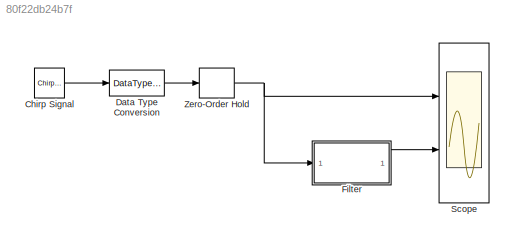
MODEL slx_80f22db24b7f
KIND model
CONFIG AbsTol = auto
CONFIG FixedStep = auto
CONFIG MaxStep = auto
CONFIG MinStep = auto
CONFIG RelTol = 1e-3
CONFIG SampleTimeConstraint = Unconstrained
CONFIG Solver = FixedStepDiscrete
CONFIG SolverMode = SingleTasking
CONFIG SolverName = FixedStepDiscrete
CONFIG StartTime = 0.0
CONFIG StopTime = 10000/1e6
BLOCK [Reference] Chirp Signal  REF=simulink/Sources/Chirp Signal
  Ports = [0, 1]
  SourceBlock = simulink/Sources/Chirp Signal
  SourceType = chirp
BLOCK [DataTypeConversion] Data Type Conversion
  OutDataTypeStr = fixdt(1,16,14)
  RndMeth = Nearest
  SaturateOnIntegerOverflow = off
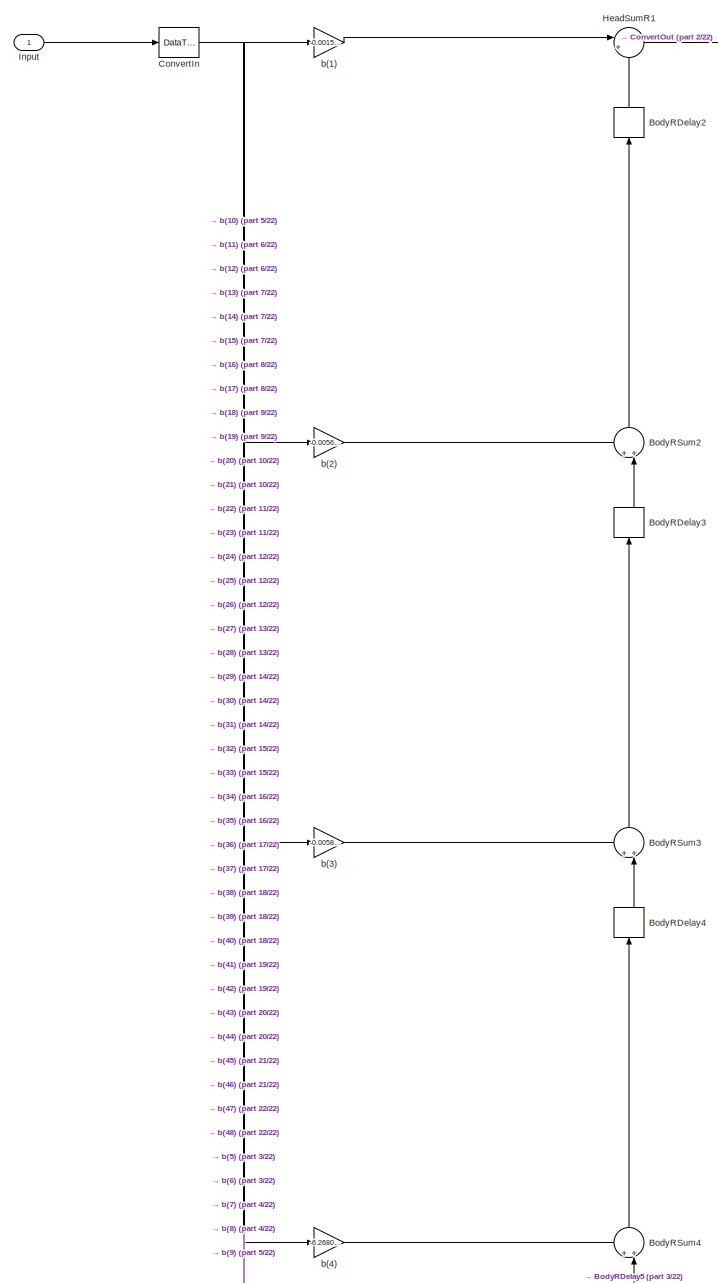
[diagram: Filter - part 1/22, full width, top band]
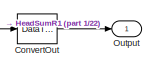
[diagram: Filter - part 2/22, top right region]
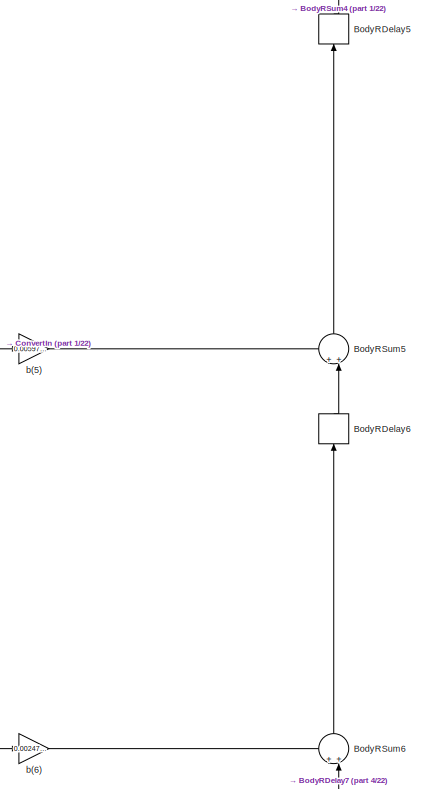
[diagram: Filter - part 3/22, top center region]
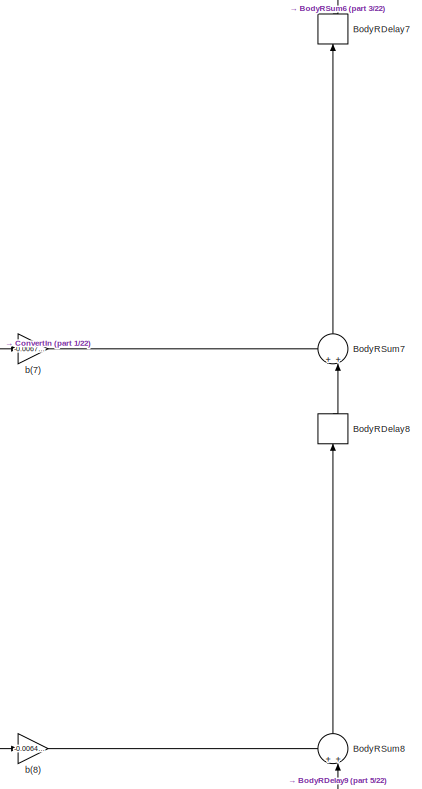
[diagram: Filter - part 4/22, top center region]
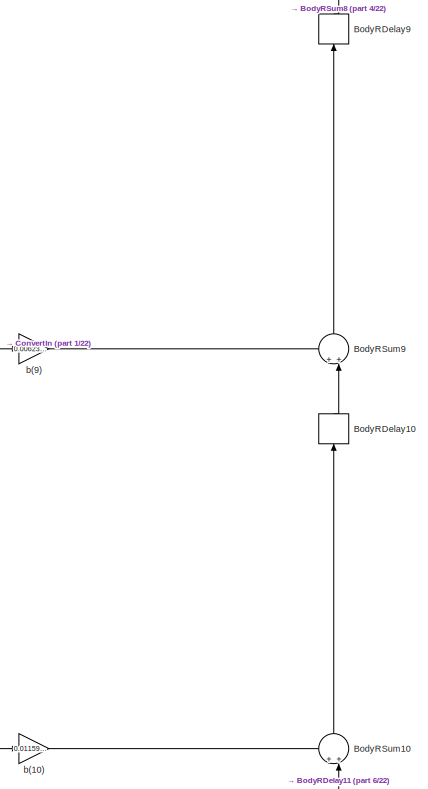
[diagram: Filter - part 5/22, top center region]
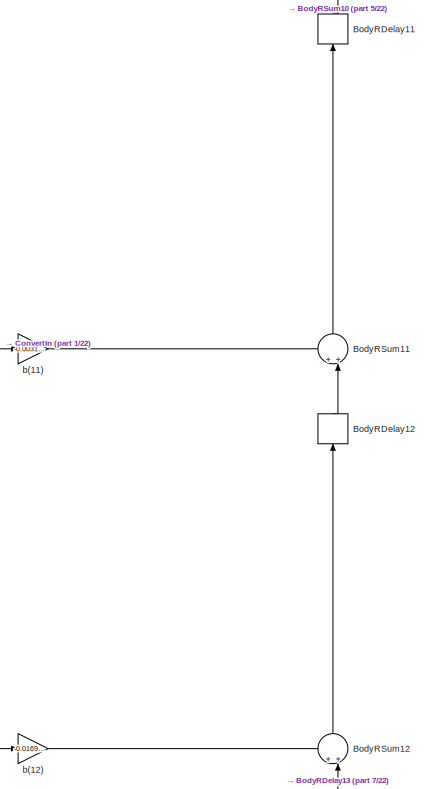
[diagram: Filter - part 6/22, top center region]
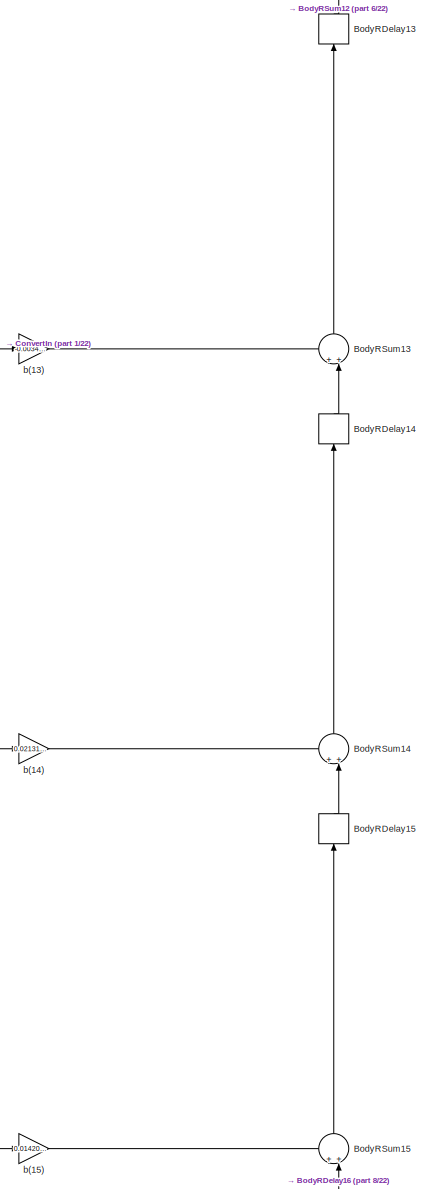
[diagram: Filter - part 7/22, top center region]
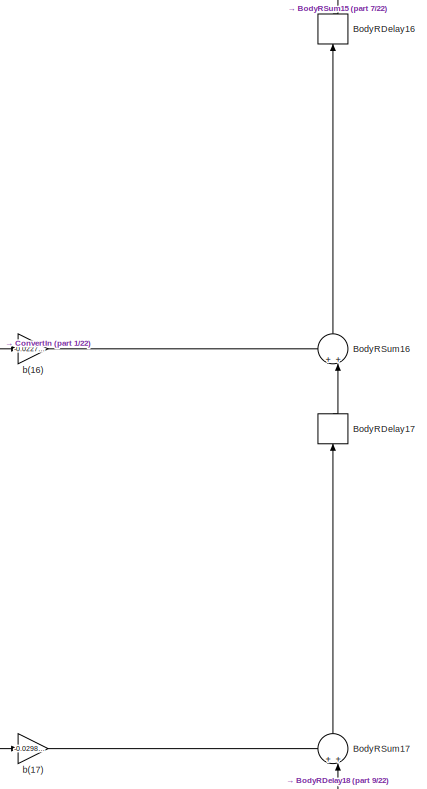
[diagram: Filter - part 8/22, top center region]
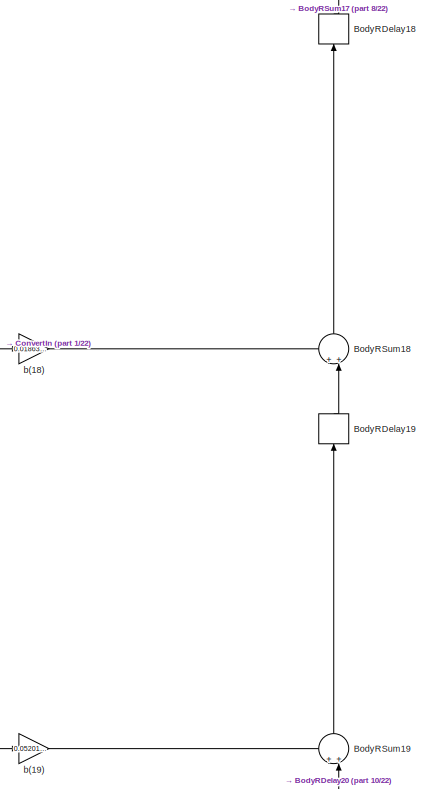
[diagram: Filter - part 9/22, central region]
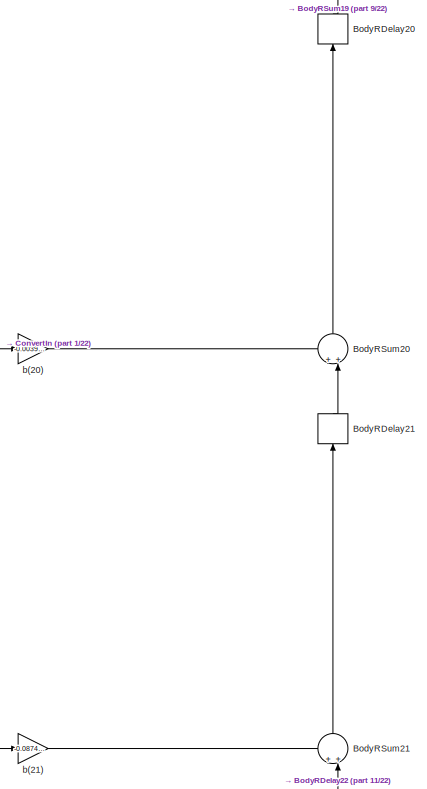
[diagram: Filter - part 10/22, central region]
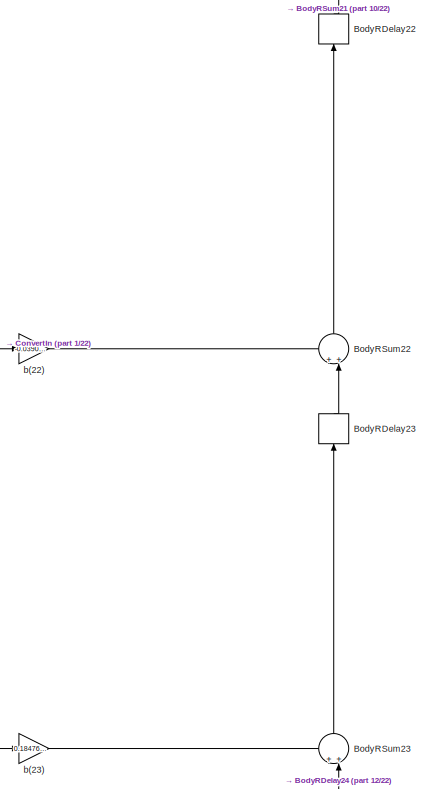
[diagram: Filter - part 11/22, central region]
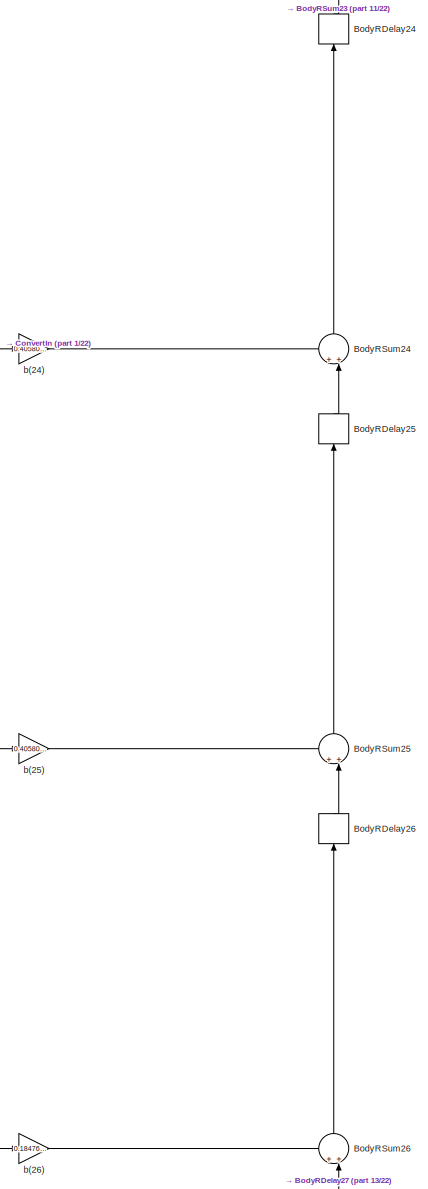
[diagram: Filter - part 12/22, central region]
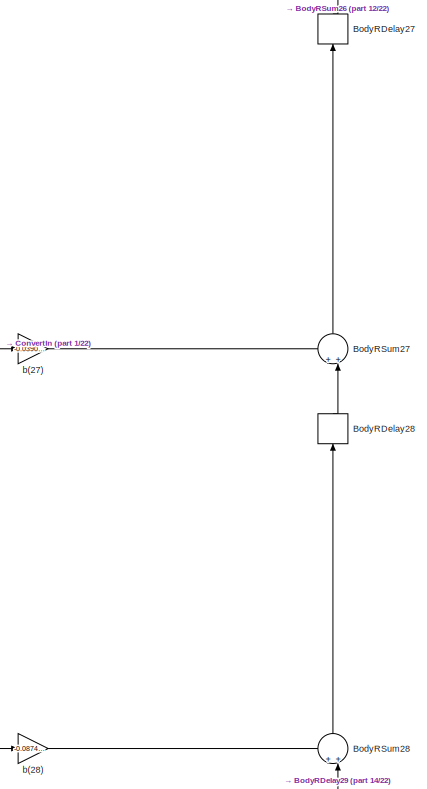
[diagram: Filter - part 13/22, central region]
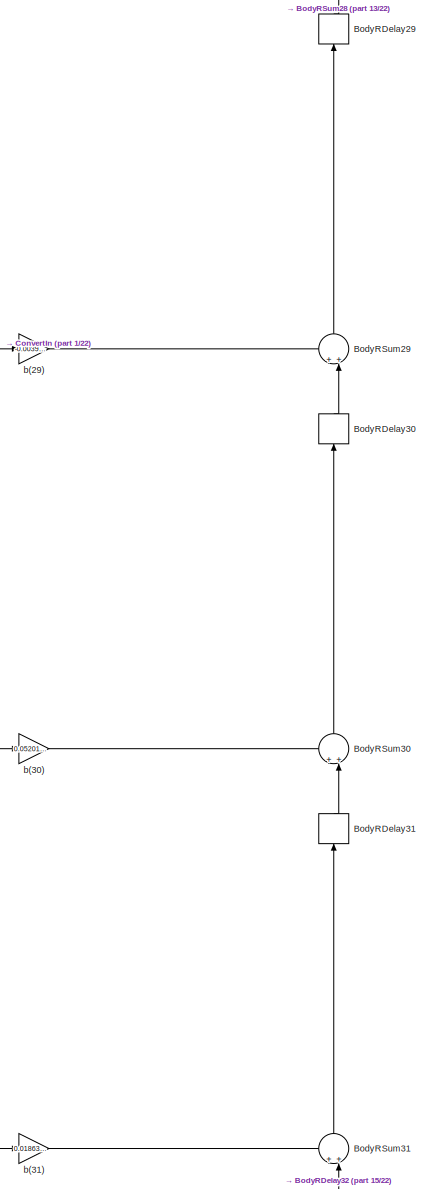
[diagram: Filter - part 14/22, central region]
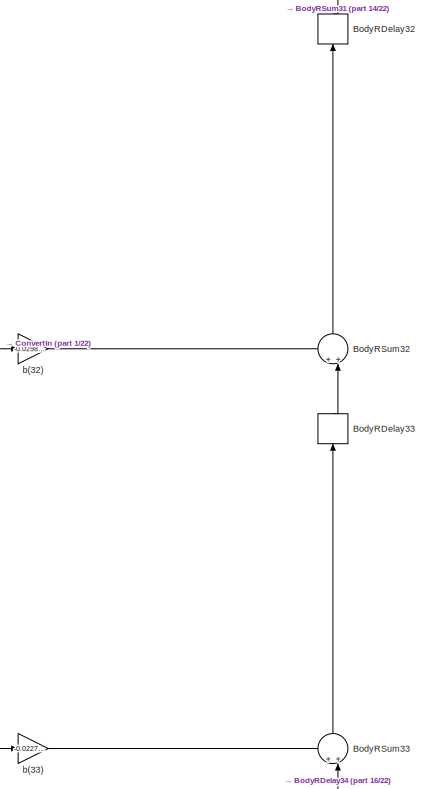
[diagram: Filter - part 15/22, central region]
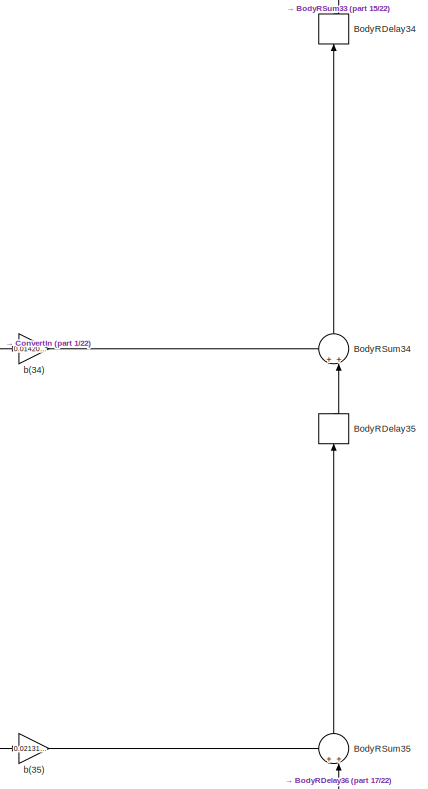
[diagram: Filter - part 16/22, bottom center region]
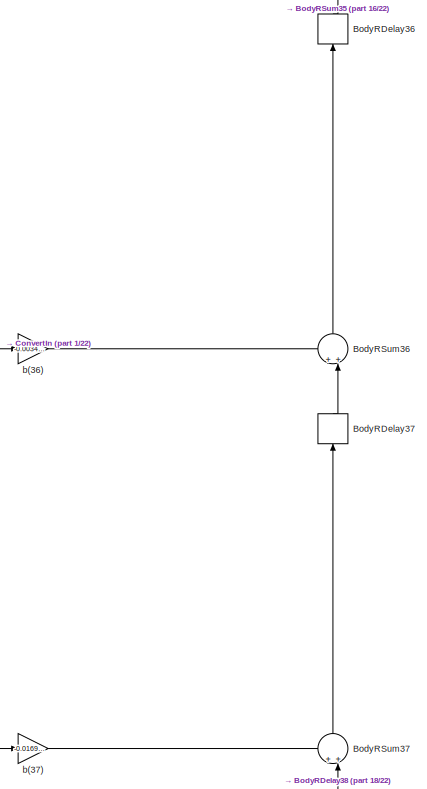
[diagram: Filter - part 17/22, bottom center region]
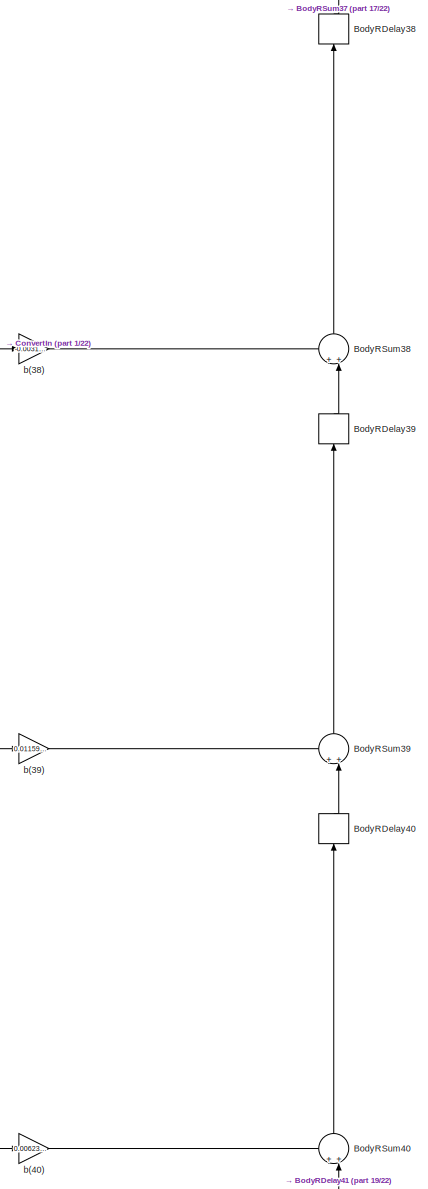
[diagram: Filter - part 18/22, bottom center region]
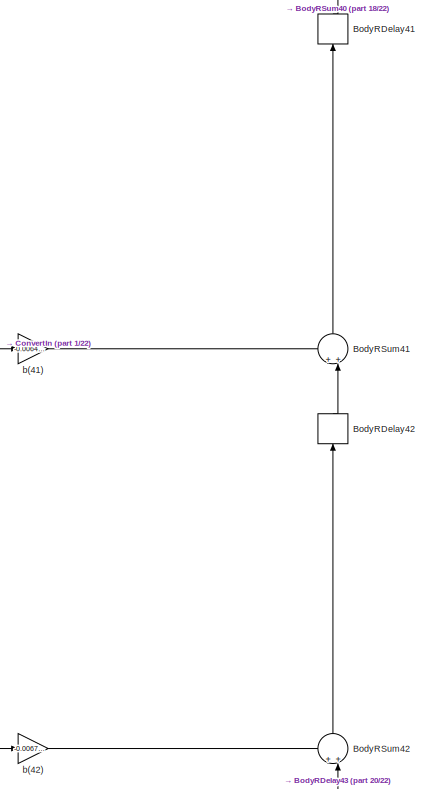
[diagram: Filter - part 19/22, bottom center region]
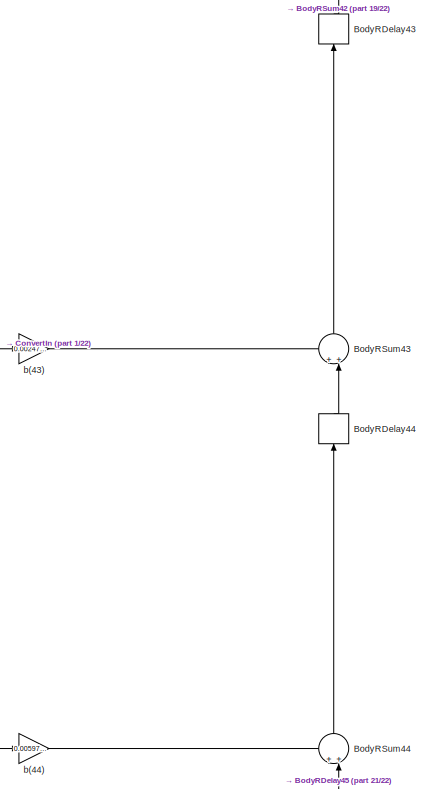
[diagram: Filter - part 20/22, bottom center region]
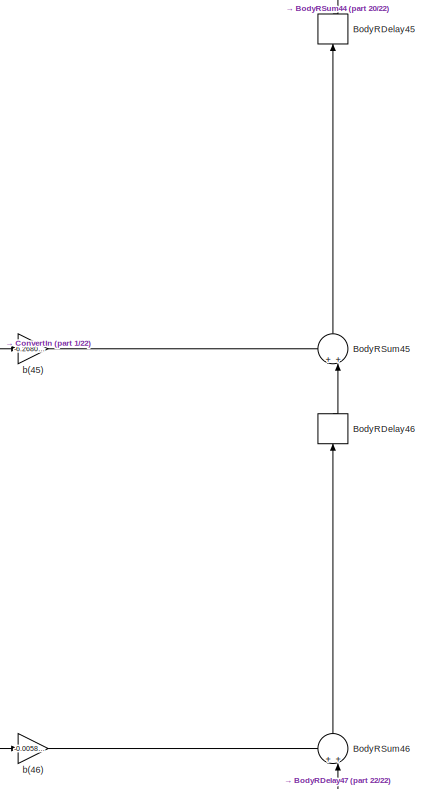
[diagram: Filter - part 21/22, bottom center region]
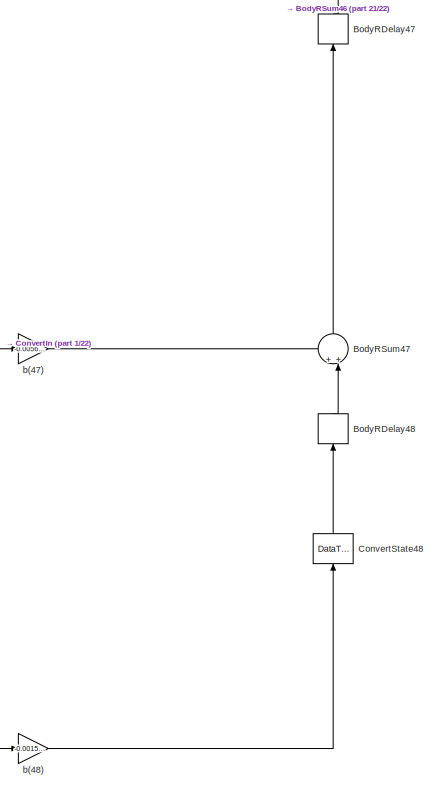
[diagram: Filter - part 22/22, bottom center region]
BLOCK [SubSystem] Filter
  ErrorFcn = dspFilterRealizedInBasicElemsAlgLoopErrFcnCallback
  Ports = [1, 1]
  RequestExecContextInheritance = off
  Tag = FilterWizardSubSystem
  UserDataPersistent = on
  Variant = off
BLOCK [Delay] Filter/BodyRDelay10
  DelayLength = 1
  InitialCondition = 0
  InputPortMap = u0
  InputProcessing = Columns as channels (frame based)
  Ports = [1, 1]
BLOCK [Delay] Filter/BodyRDelay11
  DelayLength = 1
  InitialCondition = 0
  InputPortMap = u0
  InputProcessing = Columns as channels (frame based)
  Ports = [1, 1]
BLOCK [Delay] Filter/BodyRDelay12
  DelayLength = 1
  InitialCondition = 0
  InputPortMap = u0
  InputProcessing = Columns as channels (frame based)
  Ports = [1, 1]
BLOCK [Delay] Filter/BodyRDelay13
  DelayLength = 1
  InitialCondition = 0
  InputPortMap = u0
  InputProcessing = Columns as channels (frame based)
  Ports = [1, 1]
BLOCK [Delay] Filter/BodyRDelay14
  DelayLength = 1
  InitialCondition = 0
  InputPortMap = u0
  InputProcessing = Columns as channels (frame based)
  Ports = [1, 1]
BLOCK [Delay] Filter/BodyRDelay15
  DelayLength = 1
  InitialCondition = 0
  InputPortMap = u0
  InputProcessing = Columns as channels (frame based)
  Ports = [1, 1]
BLOCK [Delay] Filter/BodyRDelay16
  DelayLength = 1
  InitialCondition = 0
  InputPortMap = u0
  InputProcessing = Columns as channels (frame based)
  Ports = [1, 1]
BLOCK [Delay] Filter/BodyRDelay17
  DelayLength = 1
  InitialCondition = 0
  InputPortMap = u0
  InputProcessing = Columns as channels (frame based)
  Ports = [1, 1]
BLOCK [Delay] Filter/BodyRDelay18
  DelayLength = 1
  InitialCondition = 0
  InputPortMap = u0
  InputProcessing = Columns as channels (frame based)
  Ports = [1, 1]
BLOCK [Delay] Filter/BodyRDelay19
  DelayLength = 1
  InitialCondition = 0
  InputPortMap = u0
  InputProcessing = Columns as channels (frame based)
  Ports = [1, 1]
BLOCK [Delay] Filter/BodyRDelay2
  DelayLength = 1
  InitialCondition = 0
  InputPortMap = u0
  InputProcessing = Columns as channels (frame based)
  Ports = [1, 1]
BLOCK [Delay] Filter/BodyRDelay20
  DelayLength = 1
  InitialCondition = 0
  InputPortMap = u0
  InputProcessing = Columns as channels (frame based)
  Ports = [1, 1]
BLOCK [Delay] Filter/BodyRDelay21
  DelayLength = 1
  InitialCondition = 0
  InputPortMap = u0
  InputProcessing = Columns as channels (frame based)
  Ports = [1, 1]
BLOCK [Delay] Filter/BodyRDelay22
  DelayLength = 1
  InitialCondition = 0
  InputPortMap = u0
  InputProcessing = Columns as channels (frame based)
  Ports = [1, 1]
BLOCK [Delay] Filter/BodyRDelay23
  DelayLength = 1
  InitialCondition = 0
  InputPortMap = u0
  InputProcessing = Columns as channels (frame based)
  Ports = [1, 1]
BLOCK [Delay] Filter/BodyRDelay24
  DelayLength = 1
  InitialCondition = 0
  InputPortMap = u0
  InputProcessing = Columns as channels (frame based)
  Ports = [1, 1]
BLOCK [Delay] Filter/BodyRDelay25
  DelayLength = 1
  InitialCondition = 0
  InputPortMap = u0
  InputProcessing = Columns as channels (frame based)
  Ports = [1, 1]
BLOCK [Delay] Filter/BodyRDelay26
  DelayLength = 1
  InitialCondition = 0
  InputPortMap = u0
  InputProcessing = Columns as channels (frame based)
  Ports = [1, 1]
BLOCK [Delay] Filter/BodyRDelay27
  DelayLength = 1
  InitialCondition = 0
  InputPortMap = u0
  InputProcessing = Columns as channels (frame based)
  Ports = [1, 1]
BLOCK [Delay] Filter/BodyRDelay28
  DelayLength = 1
  InitialCondition = 0
  InputPortMap = u0
  InputProcessing = Columns as channels (frame based)
  Ports = [1, 1]
BLOCK [Delay] Filter/BodyRDelay29
  DelayLength = 1
  InitialCondition = 0
  InputPortMap = u0
  InputProcessing = Columns as channels (frame based)
  Ports = [1, 1]
BLOCK [Delay] Filter/BodyRDelay3
  DelayLength = 1
  InitialCondition = 0
  InputPortMap = u0
  InputProcessing = Columns as channels (frame based)
  Ports = [1, 1]
BLOCK [Delay] Filter/BodyRDelay30
  DelayLength = 1
  InitialCondition = 0
  InputPortMap = u0
  InputProcessing = Columns as channels (frame based)
  Ports = [1, 1]
BLOCK [Delay] Filter/BodyRDelay31
  DelayLength = 1
  InitialCondition = 0
  InputPortMap = u0
  InputProcessing = Columns as channels (frame based)
  Ports = [1, 1]
BLOCK [Delay] Filter/BodyRDelay32
  DelayLength = 1
  InitialCondition = 0
  InputPortMap = u0
  InputProcessing = Columns as channels (frame based)
  Ports = [1, 1]
BLOCK [Delay] Filter/BodyRDelay33
  DelayLength = 1
  InitialCondition = 0
  InputPortMap = u0
  InputProcessing = Columns as channels (frame based)
  Ports = [1, 1]
BLOCK [Delay] Filter/BodyRDelay34
  DelayLength = 1
  InitialCondition = 0
  InputPortMap = u0
  InputProcessing = Columns as channels (frame based)
  Ports = [1, 1]
BLOCK [Delay] Filter/BodyRDelay35
  DelayLength = 1
  InitialCondition = 0
  InputPortMap = u0
  InputProcessing = Columns as channels (frame based)
  Ports = [1, 1]
BLOCK [Delay] Filter/BodyRDelay36
  DelayLength = 1
  InitialCondition = 0
  InputPortMap = u0
  InputProcessing = Columns as channels (frame based)
  Ports = [1, 1]
BLOCK [Delay] Filter/BodyRDelay37
  DelayLength = 1
  InitialCondition = 0
  InputPortMap = u0
  InputProcessing = Columns as channels (frame based)
  Ports = [1, 1]
BLOCK [Delay] Filter/BodyRDelay38
  DelayLength = 1
  InitialCondition = 0
  InputPortMap = u0
  InputProcessing = Columns as channels (frame based)
  Ports = [1, 1]
BLOCK [Delay] Filter/BodyRDelay39
  DelayLength = 1
  InitialCondition = 0
  InputPortMap = u0
  InputProcessing = Columns as channels (frame based)
  Ports = [1, 1]
BLOCK [Delay] Filter/BodyRDelay4
  DelayLength = 1
  InitialCondition = 0
  InputPortMap = u0
  InputProcessing = Columns as channels (frame based)
  Ports = [1, 1]
BLOCK [Delay] Filter/BodyRDelay40
  DelayLength = 1
  InitialCondition = 0
  InputPortMap = u0
  InputProcessing = Columns as channels (frame based)
  Ports = [1, 1]
BLOCK [Delay] Filter/BodyRDelay41
  DelayLength = 1
  InitialCondition = 0
  InputPortMap = u0
  InputProcessing = Columns as channels (frame based)
  Ports = [1, 1]
BLOCK [Delay] Filter/BodyRDelay42
  DelayLength = 1
  InitialCondition = 0
  InputPortMap = u0
  InputProcessing = Columns as channels (frame based)
  Ports = [1, 1]
BLOCK [Delay] Filter/BodyRDelay43
  DelayLength = 1
  InitialCondition = 0
  InputPortMap = u0
  InputProcessing = Columns as channels (frame based)
  Ports = [1, 1]
BLOCK [Delay] Filter/BodyRDelay44
  DelayLength = 1
  InitialCondition = 0
  InputPortMap = u0
  InputProcessing = Columns as channels (frame based)
  Ports = [1, 1]
BLOCK [Delay] Filter/BodyRDelay45
  DelayLength = 1
  InitialCondition = 0
  InputPortMap = u0
  InputProcessing = Columns as channels (frame based)
  Ports = [1, 1]
BLOCK [Delay] Filter/BodyRDelay46
  DelayLength = 1
  InitialCondition = 0
  InputPortMap = u0
  InputProcessing = Columns as channels (frame based)
  Ports = [1, 1]
BLOCK [Delay] Filter/BodyRDelay47
  DelayLength = 1
  InitialCondition = 0
  InputPortMap = u0
  InputProcessing = Columns as channels (frame based)
  Ports = [1, 1]
BLOCK [Delay] Filter/BodyRDelay48
  DelayLength = 1
  InitialCondition = 0
  InputPortMap = u0
  InputProcessing = Columns as channels (frame based)
  Ports = [1, 1]
BLOCK [Delay] Filter/BodyRDelay5
  DelayLength = 1
  InitialCondition = 0
  InputPortMap = u0
  InputProcessing = Columns as channels (frame based)
  Ports = [1, 1]
BLOCK [Delay] Filter/BodyRDelay6
  DelayLength = 1
  InitialCondition = 0
  InputPortMap = u0
  InputProcessing = Columns as channels (frame based)
  Ports = [1, 1]
BLOCK [Delay] Filter/BodyRDelay7
  DelayLength = 1
  InitialCondition = 0
  InputPortMap = u0
  InputProcessing = Columns as channels (frame based)
  Ports = [1, 1]
BLOCK [Delay] Filter/BodyRDelay8
  DelayLength = 1
  InitialCondition = 0
  InputPortMap = u0
  InputProcessing = Columns as channels (frame based)
  Ports = [1, 1]
BLOCK [Delay] Filter/BodyRDelay9
  DelayLength = 1
  InitialCondition = 0
  InputPortMap = u0
  InputProcessing = Columns as channels (frame based)
  Ports = [1, 1]
BLOCK [Sum] Filter/BodyRSum10
  AccumDataTypeStr = fixdt(1,33,30)
  IconShape = round
  InputSameDT = off
  Inputs = ++|
  OutDataTypeStr = fixdt(1,33,31)
  Ports = [2, 1]
  SaturateOnIntegerOverflow = off
BLOCK [Sum] Filter/BodyRSum11
  AccumDataTypeStr = fixdt(1,33,30)
  IconShape = round
  InputSameDT = off
  Inputs = ++|
  OutDataTypeStr = fixdt(1,33,31)
  Ports = [2, 1]
  SaturateOnIntegerOverflow = off
BLOCK [Sum] Filter/BodyRSum12
  AccumDataTypeStr = fixdt(1,33,30)
  IconShape = round
  InputSameDT = off
  Inputs = ++|
  OutDataTypeStr = fixdt(1,33,31)
  Ports = [2, 1]
  SaturateOnIntegerOverflow = off
BLOCK [Sum] Filter/BodyRSum13
  AccumDataTypeStr = fixdt(1,33,30)
  IconShape = round
  InputSameDT = off
  Inputs = ++|
  OutDataTypeStr = fixdt(1,33,31)
  Ports = [2, 1]
  SaturateOnIntegerOverflow = off
BLOCK [Sum] Filter/BodyRSum14
  AccumDataTypeStr = fixdt(1,33,30)
  IconShape = round
  InputSameDT = off
  Inputs = ++|
  OutDataTypeStr = fixdt(1,33,31)
  Ports = [2, 1]
  SaturateOnIntegerOverflow = off
BLOCK [Sum] Filter/BodyRSum15
  AccumDataTypeStr = fixdt(1,33,30)
  IconShape = round
  InputSameDT = off
  Inputs = ++|
  OutDataTypeStr = fixdt(1,33,31)
  Ports = [2, 1]
  SaturateOnIntegerOverflow = off
BLOCK [Sum] Filter/BodyRSum16
  AccumDataTypeStr = fixdt(1,33,30)
  IconShape = round
  InputSameDT = off
  Inputs = ++|
  OutDataTypeStr = fixdt(1,33,31)
  Ports = [2, 1]
  SaturateOnIntegerOverflow = off
BLOCK [Sum] Filter/BodyRSum17
  AccumDataTypeStr = fixdt(1,33,30)
  IconShape = round
  InputSameDT = off
  Inputs = ++|
  OutDataTypeStr = fixdt(1,33,31)
  Ports = [2, 1]
  SaturateOnIntegerOverflow = off
BLOCK [Sum] Filter/BodyRSum18
  AccumDataTypeStr = fixdt(1,33,30)
  IconShape = round
  InputSameDT = off
  Inputs = ++|
  OutDataTypeStr = fixdt(1,33,31)
  Ports = [2, 1]
  SaturateOnIntegerOverflow = off
BLOCK [Sum] Filter/BodyRSum19
  AccumDataTypeStr = fixdt(1,33,30)
  IconShape = round
  InputSameDT = off
  Inputs = ++|
  OutDataTypeStr = fixdt(1,33,31)
  Ports = [2, 1]
  SaturateOnIntegerOverflow = off
BLOCK [Sum] Filter/BodyRSum2
  AccumDataTypeStr = fixdt(1,33,30)
  IconShape = round
  InputSameDT = off
  Inputs = ++|
  OutDataTypeStr = fixdt(1,33,31)
  Ports = [2, 1]
  SaturateOnIntegerOverflow = off
BLOCK [Sum] Filter/BodyRSum20
  AccumDataTypeStr = fixdt(1,33,30)
  IconShape = round
  InputSameDT = off
  Inputs = ++|
  OutDataTypeStr = fixdt(1,33,31)
  Ports = [2, 1]
  SaturateOnIntegerOverflow = off
BLOCK [Sum] Filter/BodyRSum21
  AccumDataTypeStr = fixdt(1,33,30)
  IconShape = round
  InputSameDT = off
  Inputs = ++|
  OutDataTypeStr = fixdt(1,33,31)
  Ports = [2, 1]
  SaturateOnIntegerOverflow = off
BLOCK [Sum] Filter/BodyRSum22
  AccumDataTypeStr = fixdt(1,33,30)
  IconShape = round
  InputSameDT = off
  Inputs = ++|
  OutDataTypeStr = fixdt(1,33,31)
  Ports = [2, 1]
  SaturateOnIntegerOverflow = off
BLOCK [Sum] Filter/BodyRSum23
  AccumDataTypeStr = fixdt(1,33,30)
  IconShape = round
  InputSameDT = off
  Inputs = ++|
  OutDataTypeStr = fixdt(1,33,31)
  Ports = [2, 1]
  SaturateOnIntegerOverflow = off
BLOCK [Sum] Filter/BodyRSum24
  AccumDataTypeStr = fixdt(1,33,30)
  IconShape = round
  InputSameDT = off
  Inputs = ++|
  OutDataTypeStr = fixdt(1,33,31)
  Ports = [2, 1]
  SaturateOnIntegerOverflow = off
BLOCK [Sum] Filter/BodyRSum25
  AccumDataTypeStr = fixdt(1,33,30)
  IconShape = round
  InputSameDT = off
  Inputs = ++|
  OutDataTypeStr = fixdt(1,33,31)
  Ports = [2, 1]
  SaturateOnIntegerOverflow = off
BLOCK [Sum] Filter/BodyRSum26
  AccumDataTypeStr = fixdt(1,33,30)
  IconShape = round
  InputSameDT = off
  Inputs = ++|
  OutDataTypeStr = fixdt(1,33,31)
  Ports = [2, 1]
  SaturateOnIntegerOverflow = off
BLOCK [Sum] Filter/BodyRSum27
  AccumDataTypeStr = fixdt(1,33,30)
  IconShape = round
  InputSameDT = off
  Inputs = ++|
  OutDataTypeStr = fixdt(1,33,31)
  Ports = [2, 1]
  SaturateOnIntegerOverflow = off
BLOCK [Sum] Filter/BodyRSum28
  AccumDataTypeStr = fixdt(1,33,30)
  IconShape = round
  InputSameDT = off
  Inputs = ++|
  OutDataTypeStr = fixdt(1,33,31)
  Ports = [2, 1]
  SaturateOnIntegerOverflow = off
BLOCK [Sum] Filter/BodyRSum29
  AccumDataTypeStr = fixdt(1,33,30)
  IconShape = round
  InputSameDT = off
  Inputs = ++|
  OutDataTypeStr = fixdt(1,33,31)
  Ports = [2, 1]
  SaturateOnIntegerOverflow = off
BLOCK [Sum] Filter/BodyRSum3
  AccumDataTypeStr = fixdt(1,33,30)
  IconShape = round
  InputSameDT = off
  Inputs = ++|
  OutDataTypeStr = fixdt(1,33,31)
  Ports = [2, 1]
  SaturateOnIntegerOverflow = off
BLOCK [Sum] Filter/BodyRSum30
  AccumDataTypeStr = fixdt(1,33,30)
  IconShape = round
  InputSameDT = off
  Inputs = ++|
  OutDataTypeStr = fixdt(1,33,31)
  Ports = [2, 1]
  SaturateOnIntegerOverflow = off
BLOCK [Sum] Filter/BodyRSum31
  AccumDataTypeStr = fixdt(1,33,30)
  IconShape = round
  InputSameDT = off
  Inputs = ++|
  OutDataTypeStr = fixdt(1,33,31)
  Ports = [2, 1]
  SaturateOnIntegerOverflow = off
BLOCK [Sum] Filter/BodyRSum32
  AccumDataTypeStr = fixdt(1,33,30)
  IconShape = round
  InputSameDT = off
  Inputs = ++|
  OutDataTypeStr = fixdt(1,33,31)
  Ports = [2, 1]
  SaturateOnIntegerOverflow = off
BLOCK [Sum] Filter/BodyRSum33
  AccumDataTypeStr = fixdt(1,33,30)
  IconShape = round
  InputSameDT = off
  Inputs = ++|
  OutDataTypeStr = fixdt(1,33,31)
  Ports = [2, 1]
  SaturateOnIntegerOverflow = off
BLOCK [Sum] Filter/BodyRSum34
  AccumDataTypeStr = fixdt(1,33,30)
  IconShape = round
  InputSameDT = off
  Inputs = ++|
  OutDataTypeStr = fixdt(1,33,31)
  Ports = [2, 1]
  SaturateOnIntegerOverflow = off
BLOCK [Sum] Filter/BodyRSum35
  AccumDataTypeStr = fixdt(1,33,30)
  IconShape = round
  InputSameDT = off
  Inputs = ++|
  OutDataTypeStr = fixdt(1,33,31)
  Ports = [2, 1]
  SaturateOnIntegerOverflow = off
BLOCK [Sum] Filter/BodyRSum36
  AccumDataTypeStr = fixdt(1,33,30)
  IconShape = round
  InputSameDT = off
  Inputs = ++|
  OutDataTypeStr = fixdt(1,33,31)
  Ports = [2, 1]
  SaturateOnIntegerOverflow = off
BLOCK [Sum] Filter/BodyRSum37
  AccumDataTypeStr = fixdt(1,33,30)
  IconShape = round
  InputSameDT = off
  Inputs = ++|
  OutDataTypeStr = fixdt(1,33,31)
  Ports = [2, 1]
  SaturateOnIntegerOverflow = off
BLOCK [Sum] Filter/BodyRSum38
  AccumDataTypeStr = fixdt(1,33,30)
  IconShape = round
  InputSameDT = off
  Inputs = ++|
  OutDataTypeStr = fixdt(1,33,31)
  Ports = [2, 1]
  SaturateOnIntegerOverflow = off
BLOCK [Sum] Filter/BodyRSum39
  AccumDataTypeStr = fixdt(1,33,30)
  IconShape = round
  InputSameDT = off
  Inputs = ++|
  OutDataTypeStr = fixdt(1,33,31)
  Ports = [2, 1]
  SaturateOnIntegerOverflow = off
BLOCK [Sum] Filter/BodyRSum4
  AccumDataTypeStr = fixdt(1,33,30)
  IconShape = round
  InputSameDT = off
  Inputs = ++|
  OutDataTypeStr = fixdt(1,33,31)
  Ports = [2, 1]
  SaturateOnIntegerOverflow = off
BLOCK [Sum] Filter/BodyRSum40
  AccumDataTypeStr = fixdt(1,33,30)
  IconShape = round
  InputSameDT = off
  Inputs = ++|
  OutDataTypeStr = fixdt(1,33,31)
  Ports = [2, 1]
  SaturateOnIntegerOverflow = off
BLOCK [Sum] Filter/BodyRSum41
  AccumDataTypeStr = fixdt(1,33,30)
  IconShape = round
  InputSameDT = off
  Inputs = ++|
  OutDataTypeStr = fixdt(1,33,31)
  Ports = [2, 1]
  SaturateOnIntegerOverflow = off
BLOCK [Sum] Filter/BodyRSum42
  AccumDataTypeStr = fixdt(1,33,30)
  IconShape = round
  InputSameDT = off
  Inputs = ++|
  OutDataTypeStr = fixdt(1,33,31)
  Ports = [2, 1]
  SaturateOnIntegerOverflow = off
BLOCK [Sum] Filter/BodyRSum43
  AccumDataTypeStr = fixdt(1,33,30)
  IconShape = round
  InputSameDT = off
  Inputs = ++|
  OutDataTypeStr = fixdt(1,33,31)
  Ports = [2, 1]
  SaturateOnIntegerOverflow = off
BLOCK [Sum] Filter/BodyRSum44
  AccumDataTypeStr = fixdt(1,33,30)
  IconShape = round
  InputSameDT = off
  Inputs = ++|
  OutDataTypeStr = fixdt(1,33,31)
  Ports = [2, 1]
  SaturateOnIntegerOverflow = off
BLOCK [Sum] Filter/BodyRSum45
  AccumDataTypeStr = fixdt(1,33,30)
  IconShape = round
  InputSameDT = off
  Inputs = ++|
  OutDataTypeStr = fixdt(1,33,31)
  Ports = [2, 1]
  SaturateOnIntegerOverflow = off
BLOCK [Sum] Filter/BodyRSum46
  AccumDataTypeStr = fixdt(1,33,30)
  IconShape = round
  InputSameDT = off
  Inputs = ++|
  OutDataTypeStr = fixdt(1,33,31)
  Ports = [2, 1]
  SaturateOnIntegerOverflow = off
BLOCK [Sum] Filter/BodyRSum47
  AccumDataTypeStr = fixdt(1,33,30)
  IconShape = round
  InputSameDT = off
  Inputs = ++|
  OutDataTypeStr = fixdt(1,33,31)
  Ports = [2, 1]
  SaturateOnIntegerOverflow = off
BLOCK [Sum] Filter/BodyRSum5
  AccumDataTypeStr = fixdt(1,33,30)
  IconShape = round
  InputSameDT = off
  Inputs = ++|
  OutDataTypeStr = fixdt(1,33,31)
  Ports = [2, 1]
  SaturateOnIntegerOverflow = off
BLOCK [Sum] Filter/BodyRSum6
  AccumDataTypeStr = fixdt(1,33,30)
  IconShape = round
  InputSameDT = off
  Inputs = ++|
  OutDataTypeStr = fixdt(1,33,31)
  Ports = [2, 1]
  SaturateOnIntegerOverflow = off
BLOCK [Sum] Filter/BodyRSum7
  AccumDataTypeStr = fixdt(1,33,30)
  IconShape = round
  InputSameDT = off
  Inputs = ++|
  OutDataTypeStr = fixdt(1,33,31)
  Ports = [2, 1]
  SaturateOnIntegerOverflow = off
BLOCK [Sum] Filter/BodyRSum8
  AccumDataTypeStr = fixdt(1,33,30)
  IconShape = round
  InputSameDT = off
  Inputs = ++|
  OutDataTypeStr = fixdt(1,33,31)
  Ports = [2, 1]
  SaturateOnIntegerOverflow = off
BLOCK [Sum] Filter/BodyRSum9
  AccumDataTypeStr = fixdt(1,33,30)
  IconShape = round
  InputSameDT = off
  Inputs = ++|
  OutDataTypeStr = fixdt(1,33,31)
  Ports = [2, 1]
  SaturateOnIntegerOverflow = off
BLOCK [DataTypeConversion] Filter/ConvertIn
  OutDataTypeStr = fixdt(1,16,14)
  RndMeth = Nearest
BLOCK [DataTypeConversion] Filter/ConvertOut
  OutDataTypeStr = fixdt(1,16,14)
  RndMeth = Floor
  SaturateOnIntegerOverflow = off
BLOCK [DataTypeConversion] Filter/ConvertState48
  OutDataTypeStr = fixdt(1,33,31)
  RndMeth = Floor
  SaturateOnIntegerOverflow = off
BLOCK [Sum] Filter/HeadSumR1
  AccumDataTypeStr = fixdt(1,33,30)
  IconShape = round
  InputSameDT = off
  Inputs = |++
  OutDataTypeStr = fixdt(1,33,31)
  Ports = [2, 1]
  SaturateOnIntegerOverflow = off
BLOCK [Inport] Filter/Input
  IconDisplay = Port number
BLOCK [Outport] Filter/Output
  IconDisplay = Port number
BLOCK [Gain] Filter/b(1)
  Gain = -0.0015246255854119901
  OutDataTypeStr = fixdt(1,31,31)
  ParamDataTypeStr = fixdt(1,16,16)
  SaturateOnIntegerOverflow = off
BLOCK [Gain] Filter/b(10)
  Gain = 0.011598387637803855
  OutDataTypeStr = fixdt(1,31,31)
  ParamDataTypeStr = fixdt(1,16,16)
  SaturateOnIntegerOverflow = off
BLOCK [Gain] Filter/b(11)
  Gain = -0.0031016131441193155
  OutDataTypeStr = fixdt(1,31,31)
  ParamDataTypeStr = fixdt(1,16,16)
  SaturateOnIntegerOverflow = off
BLOCK [Gain] Filter/b(12)
  Gain = -0.01699091246940064
  OutDataTypeStr = fixdt(1,31,31)
  ParamDataTypeStr = fixdt(1,16,16)
  SaturateOnIntegerOverflow = off
BLOCK [Gain] Filter/b(13)
  Gain = -0.003469463473475945
  OutDataTypeStr = fixdt(1,31,31)
  ParamDataTypeStr = fixdt(1,16,16)
  SaturateOnIntegerOverflow = off
BLOCK [Gain] Filter/b(14)
  Gain = 0.021317820921314172
  OutDataTypeStr = fixdt(1,31,31)
  ParamDataTypeStr = fixdt(1,16,16)
  SaturateOnIntegerOverflow = off
BLOCK [Gain] Filter/b(15)
  Gain = 0.014205217299065596
  OutDataTypeStr = fixdt(1,31,31)
  ParamDataTypeStr = fixdt(1,16,16)
  SaturateOnIntegerOverflow = off
BLOCK [Gain] Filter/b(16)
  Gain = -0.022739848971926518
  OutDataTypeStr = fixdt(1,31,31)
  ParamDataTypeStr = fixdt(1,16,16)
  SaturateOnIntegerOverflow = off
BLOCK [Gain] Filter/b(17)
  Gain = -0.029832087938286563
  OutDataTypeStr = fixdt(1,31,31)
  ParamDataTypeStr = fixdt(1,16,16)
  SaturateOnIntegerOverflow = off
BLOCK [Gain] Filter/b(18)
  Gain = 0.018638954412635484
  OutDataTypeStr = fixdt(1,31,31)
  ParamDataTypeStr = fixdt(1,16,16)
  SaturateOnIntegerOverflow = off
BLOCK [Gain] Filter/b(19)
  Gain = 0.052011508906959603
  OutDataTypeStr = fixdt(1,31,31)
  ParamDataTypeStr = fixdt(1,16,16)
  SaturateOnIntegerOverflow = off
BLOCK [Gain] Filter/b(2)
  Gain = -0.0056040694699944459
  OutDataTypeStr = fixdt(1,31,31)
  ParamDataTypeStr = fixdt(1,16,16)
  SaturateOnIntegerOverflow = off
BLOCK [Gain] Filter/b(20)
  Gain = -0.0039935685035125054
  OutDataTypeStr = fixdt(1,31,31)
  ParamDataTypeStr = fixdt(1,16,16)
  SaturateOnIntegerOverflow = off
BLOCK [Gain] Filter/b(21)
  Gain = -0.087482017884039157
  OutDataTypeStr = fixdt(1,31,31)
  ParamDataTypeStr = fixdt(1,16,16)
  SaturateOnIntegerOverflow = off
BLOCK [Gain] Filter/b(22)
  Gain = -0.039025075223248162
  OutDataTypeStr = fixdt(1,31,31)
  ParamDataTypeStr = fixdt(1,16,16)
  SaturateOnIntegerOverflow = off
BLOCK [Gain] Filter/b(23)
  Gain = 0.18476516322082137
  OutDataTypeStr = fixdt(1,31,31)
  ParamDataTypeStr = fixdt(1,16,16)
  SaturateOnIntegerOverflow = off
BLOCK [Gain] Filter/b(24)
  Gain = 0.40580167040079751
  OutDataTypeStr = fixdt(1,31,31)
  ParamDataTypeStr = fixdt(1,16,16)
  SaturateOnIntegerOverflow = off
BLOCK [Gain] Filter/b(25)
  Gain = 0.40580167040079751
  OutDataTypeStr = fixdt(1,31,31)
  ParamDataTypeStr = fixdt(1,16,16)
  SaturateOnIntegerOverflow = off
BLOCK [Gain] Filter/b(26)
  Gain = 0.18476516322082137
  OutDataTypeStr = fixdt(1,31,31)
  ParamDataTypeStr = fixdt(1,16,16)
  SaturateOnIntegerOverflow = off
BLOCK [Gain] Filter/b(27)
  Gain = -0.039025075223248162
  OutDataTypeStr = fixdt(1,31,31)
  ParamDataTypeStr = fixdt(1,16,16)
  SaturateOnIntegerOverflow = off
BLOCK [Gain] Filter/b(28)
  Gain = -0.087482017884039157
  OutDataTypeStr = fixdt(1,31,31)
  ParamDataTypeStr = fixdt(1,16,16)
  SaturateOnIntegerOverflow = off
BLOCK [Gain] Filter/b(29)
  Gain = -0.0039935685035125054
  OutDataTypeStr = fixdt(1,31,31)
  ParamDataTypeStr = fixdt(1,16,16)
  SaturateOnIntegerOverflow = off
BLOCK [Gain] Filter/b(3)
  Gain = -0.0058450039381682788
  OutDataTypeStr = fixdt(1,31,31)
  ParamDataTypeStr = fixdt(1,16,16)
  SaturateOnIntegerOverflow = off
BLOCK [Gain] Filter/b(30)
  Gain = 0.052011508906959603
  OutDataTypeStr = fixdt(1,31,31)
  ParamDataTypeStr = fixdt(1,16,16)
  SaturateOnIntegerOverflow = off
BLOCK [Gain] Filter/b(31)
  Gain = 0.018638954412635484
  OutDataTypeStr = fixdt(1,31,31)
  ParamDataTypeStr = fixdt(1,16,16)
  SaturateOnIntegerOverflow = off
BLOCK [Gain] Filter/b(32)
  Gain = -0.029832087938286563
  OutDataTypeStr = fixdt(1,31,31)
  ParamDataTypeStr = fixdt(1,16,16)
  SaturateOnIntegerOverflow = off
BLOCK [Gain] Filter/b(33)
  Gain = -0.022739848971926518
  OutDataTypeStr = fixdt(1,31,31)
  ParamDataTypeStr = fixdt(1,16,16)
  SaturateOnIntegerOverflow = off
BLOCK [Gain] Filter/b(34)
  Gain = 0.014205217299065596
  OutDataTypeStr = fixdt(1,31,31)
  ParamDataTypeStr = fixdt(1,16,16)
  SaturateOnIntegerOverflow = off
BLOCK [Gain] Filter/b(35)
  Gain = 0.021317820921314172
  OutDataTypeStr = fixdt(1,31,31)
  ParamDataTypeStr = fixdt(1,16,16)
  SaturateOnIntegerOverflow = off
BLOCK [Gain] Filter/b(36)
  Gain = -0.003469463473475945
  OutDataTypeStr = fixdt(1,31,31)
  ParamDataTypeStr = fixdt(1,16,16)
  SaturateOnIntegerOverflow = off
BLOCK [Gain] Filter/b(37)
  Gain = -0.01699091246940064
  OutDataTypeStr = fixdt(1,31,31)
  ParamDataTypeStr = fixdt(1,16,16)
  SaturateOnIntegerOverflow = off
BLOCK [Gain] Filter/b(38)
  Gain = -0.0031016131441193155
  OutDataTypeStr = fixdt(1,31,31)
  ParamDataTypeStr = fixdt(1,16,16)
  SaturateOnIntegerOverflow = off
BLOCK [Gain] Filter/b(39)
  Gain = 0.011598387637803855
  OutDataTypeStr = fixdt(1,31,31)
  ParamDataTypeStr = fixdt(1,16,16)
  SaturateOnIntegerOverflow = off
BLOCK [Gain] Filter/b(4)
  Gain = -6.2680724829390806e-05
  OutDataTypeStr = fixdt(1,31,31)
  ParamDataTypeStr = fixdt(1,16,16)
  SaturateOnIntegerOverflow = off
BLOCK [Gain] Filter/b(40)
  Gain = 0.0062328738643254028
  OutDataTypeStr = fixdt(1,31,31)
  ParamDataTypeStr = fixdt(1,16,16)
  SaturateOnIntegerOverflow = off
BLOCK [Gain] Filter/b(41)
  Gain = -0.0064654391449295058
  OutDataTypeStr = fixdt(1,31,31)
  ParamDataTypeStr = fixdt(1,16,16)
  SaturateOnIntegerOverflow = off
BLOCK [Gain] Filter/b(42)
  Gain = -0.0067957421209925116
  OutDataTypeStr = fixdt(1,31,31)
  ParamDataTypeStr = fixdt(1,16,16)
  SaturateOnIntegerOverflow = off
BLOCK [Gain] Filter/b(43)
  Gain = 0.0024746345997378864
  OutDataTypeStr = fixdt(1,31,31)
  ParamDataTypeStr = fixdt(1,16,16)
  SaturateOnIntegerOverflow = off
BLOCK [Gain] Filter/b(44)
  Gain = 0.0059777568571996731
  OutDataTypeStr = fixdt(1,31,31)
  ParamDataTypeStr = fixdt(1,16,16)
  SaturateOnIntegerOverflow = off
BLOCK [Gain] Filter/b(45)
  Gain = -6.2680724829390806e-05
  OutDataTypeStr = fixdt(1,31,31)
  ParamDataTypeStr = fixdt(1,16,16)
  SaturateOnIntegerOverflow = off
BLOCK [Gain] Filter/b(46)
  Gain = -0.0058450039381682788
  OutDataTypeStr = fixdt(1,31,31)
  ParamDataTypeStr = fixdt(1,16,16)
  SaturateOnIntegerOverflow = off
BLOCK [Gain] Filter/b(47)
  Gain = -0.0056040694699944459
  OutDataTypeStr = fixdt(1,31,31)
  ParamDataTypeStr = fixdt(1,16,16)
  SaturateOnIntegerOverflow = off
BLOCK [Gain] Filter/b(48)
  Gain = -0.0015246255854119901
  OutDataTypeStr = fixdt(1,31,31)
  ParamDataTypeStr = fixdt(1,16,16)
  SaturateOnIntegerOverflow = off
BLOCK [Gain] Filter/b(5)
  Gain = 0.0059777568571996731
  OutDataTypeStr = fixdt(1,31,31)
  ParamDataTypeStr = fixdt(1,16,16)
  SaturateOnIntegerOverflow = off
BLOCK [Gain] Filter/b(6)
  Gain = 0.0024746345997378864
  OutDataTypeStr = fixdt(1,31,31)
  ParamDataTypeStr = fixdt(1,16,16)
  SaturateOnIntegerOverflow = off
BLOCK [Gain] Filter/b(7)
  Gain = -0.0067957421209925116
  OutDataTypeStr = fixdt(1,31,31)
  ParamDataTypeStr = fixdt(1,16,16)
  SaturateOnIntegerOverflow = off
BLOCK [Gain] Filter/b(8)
  Gain = -0.0064654391449295058
  OutDataTypeStr = fixdt(1,31,31)
  ParamDataTypeStr = fixdt(1,16,16)
  SaturateOnIntegerOverflow = off
BLOCK [Gain] Filter/b(9)
  Gain = 0.0062328738643254028
  OutDataTypeStr = fixdt(1,31,31)
  ParamDataTypeStr = fixdt(1,16,16)
  SaturateOnIntegerOverflow = off
BLOCK [Scope] Scope
  NumInputPorts = 2
  Ports = [2]
  ScopeSpecificationString = C++SS(StrPVP('Location','[1237, 339, 1911, 1025]'),StrPVP('Open','off'),StrPVP('ZoomMode','xonly'),MxPVP('AxesTitles',24,'struct(''axes1'',''%<SignalLabel>'',''axes2'',''%<SignalLabel>'')'),MxPVP('ScopeGraphics',28,'struct(''FigureColor'',''[0.5 0.5 0.5]'',''AxesColor'',''[0 0 0]'',''AxesTickColor'',''[1 1 1]'',''LineColors'',''[1 1 0;1 0 1;0 1 1;1 0 0;0 1 0;0 0 1]'',''LineStyles'',''-|-|-|-|-|-''...<+319ch>
BLOCK [ZeroOrderHold] Zero-Order Hold
  SampleTime = 1/1e6
LINE Chirp Signal:1 -> Data Type Conversion:1
LINE Data Type Conversion:1 -> Zero-Order Hold:1
LINE Filter/BodyRDelay10:1 -> Filter/BodyRSum9:2
LINE Filter/BodyRDelay11:1 -> Filter/BodyRSum10:2
LINE Filter/BodyRDelay12:1 -> Filter/BodyRSum11:2
LINE Filter/BodyRDelay13:1 -> Filter/BodyRSum12:2
LINE Filter/BodyRDelay14:1 -> Filter/BodyRSum13:2
LINE Filter/BodyRDelay15:1 -> Filter/BodyRSum14:2
LINE Filter/BodyRDelay16:1 -> Filter/BodyRSum15:2
LINE Filter/BodyRDelay17:1 -> Filter/BodyRSum16:2
LINE Filter/BodyRDelay18:1 -> Filter/BodyRSum17:2
LINE Filter/BodyRDelay19:1 -> Filter/BodyRSum18:2
LINE Filter/BodyRDelay20:1 -> Filter/BodyRSum19:2
LINE Filter/BodyRDelay21:1 -> Filter/BodyRSum20:2
LINE Filter/BodyRDelay22:1 -> Filter/BodyRSum21:2
LINE Filter/BodyRDelay23:1 -> Filter/BodyRSum22:2
LINE Filter/BodyRDelay24:1 -> Filter/BodyRSum23:2
LINE Filter/BodyRDelay25:1 -> Filter/BodyRSum24:2
LINE Filter/BodyRDelay26:1 -> Filter/BodyRSum25:2
LINE Filter/BodyRDelay27:1 -> Filter/BodyRSum26:2
LINE Filter/BodyRDelay28:1 -> Filter/BodyRSum27:2
LINE Filter/BodyRDelay29:1 -> Filter/BodyRSum28:2
LINE Filter/BodyRDelay2:1 -> Filter/HeadSumR1:2
LINE Filter/BodyRDelay30:1 -> Filter/BodyRSum29:2
LINE Filter/BodyRDelay31:1 -> Filter/BodyRSum30:2
LINE Filter/BodyRDelay32:1 -> Filter/BodyRSum31:2
LINE Filter/BodyRDelay33:1 -> Filter/BodyRSum32:2
LINE Filter/BodyRDelay34:1 -> Filter/BodyRSum33:2
LINE Filter/BodyRDelay35:1 -> Filter/BodyRSum34:2
LINE Filter/BodyRDelay36:1 -> Filter/BodyRSum35:2
LINE Filter/BodyRDelay37:1 -> Filter/BodyRSum36:2
LINE Filter/BodyRDelay38:1 -> Filter/BodyRSum37:2
LINE Filter/BodyRDelay39:1 -> Filter/BodyRSum38:2
LINE Filter/BodyRDelay3:1 -> Filter/BodyRSum2:2
LINE Filter/BodyRDelay40:1 -> Filter/BodyRSum39:2
LINE Filter/BodyRDelay41:1 -> Filter/BodyRSum40:2
LINE Filter/BodyRDelay42:1 -> Filter/BodyRSum41:2
LINE Filter/BodyRDelay43:1 -> Filter/BodyRSum42:2
LINE Filter/BodyRDelay44:1 -> Filter/BodyRSum43:2
LINE Filter/BodyRDelay45:1 -> Filter/BodyRSum44:2
LINE Filter/BodyRDelay46:1 -> Filter/BodyRSum45:2
LINE Filter/BodyRDelay47:1 -> Filter/BodyRSum46:2
LINE Filter/BodyRDelay48:1 -> Filter/BodyRSum47:2
LINE Filter/BodyRDelay4:1 -> Filter/BodyRSum3:2
LINE Filter/BodyRDelay5:1 -> Filter/BodyRSum4:2
LINE Filter/BodyRDelay6:1 -> Filter/BodyRSum5:2
LINE Filter/BodyRDelay7:1 -> Filter/BodyRSum6:2
LINE Filter/BodyRDelay8:1 -> Filter/BodyRSum7:2
LINE Filter/BodyRDelay9:1 -> Filter/BodyRSum8:2
LINE Filter/BodyRSum10:1 -> Filter/BodyRDelay10:1
LINE Filter/BodyRSum11:1 -> Filter/BodyRDelay11:1
LINE Filter/BodyRSum12:1 -> Filter/BodyRDelay12:1
LINE Filter/BodyRSum13:1 -> Filter/BodyRDelay13:1
LINE Filter/BodyRSum14:1 -> Filter/BodyRDelay14:1
LINE Filter/BodyRSum15:1 -> Filter/BodyRDelay15:1
LINE Filter/BodyRSum16:1 -> Filter/BodyRDelay16:1
LINE Filter/BodyRSum17:1 -> Filter/BodyRDelay17:1
LINE Filter/BodyRSum18:1 -> Filter/BodyRDelay18:1
LINE Filter/BodyRSum19:1 -> Filter/BodyRDelay19:1
LINE Filter/BodyRSum20:1 -> Filter/BodyRDelay20:1
LINE Filter/BodyRSum21:1 -> Filter/BodyRDelay21:1
LINE Filter/BodyRSum22:1 -> Filter/BodyRDelay22:1
LINE Filter/BodyRSum23:1 -> Filter/BodyRDelay23:1
LINE Filter/BodyRSum24:1 -> Filter/BodyRDelay24:1
LINE Filter/BodyRSum25:1 -> Filter/BodyRDelay25:1
LINE Filter/BodyRSum26:1 -> Filter/BodyRDelay26:1
LINE Filter/BodyRSum27:1 -> Filter/BodyRDelay27:1
LINE Filter/BodyRSum28:1 -> Filter/BodyRDelay28:1
LINE Filter/BodyRSum29:1 -> Filter/BodyRDelay29:1
LINE Filter/BodyRSum2:1 -> Filter/BodyRDelay2:1
LINE Filter/BodyRSum30:1 -> Filter/BodyRDelay30:1
LINE Filter/BodyRSum31:1 -> Filter/BodyRDelay31:1
LINE Filter/BodyRSum32:1 -> Filter/BodyRDelay32:1
LINE Filter/BodyRSum33:1 -> Filter/BodyRDelay33:1
LINE Filter/BodyRSum34:1 -> Filter/BodyRDelay34:1
LINE Filter/BodyRSum35:1 -> Filter/BodyRDelay35:1
LINE Filter/BodyRSum36:1 -> Filter/BodyRDelay36:1
LINE Filter/BodyRSum37:1 -> Filter/BodyRDelay37:1
LINE Filter/BodyRSum38:1 -> Filter/BodyRDelay38:1
LINE Filter/BodyRSum39:1 -> Filter/BodyRDelay39:1
LINE Filter/BodyRSum3:1 -> Filter/BodyRDelay3:1
LINE Filter/BodyRSum40:1 -> Filter/BodyRDelay40:1
LINE Filter/BodyRSum41:1 -> Filter/BodyRDelay41:1
LINE Filter/BodyRSum42:1 -> Filter/BodyRDelay42:1
LINE Filter/BodyRSum43:1 -> Filter/BodyRDelay43:1
LINE Filter/BodyRSum44:1 -> Filter/BodyRDelay44:1
LINE Filter/BodyRSum45:1 -> Filter/BodyRDelay45:1
LINE Filter/BodyRSum46:1 -> Filter/BodyRDelay46:1
LINE Filter/BodyRSum47:1 -> Filter/BodyRDelay47:1
LINE Filter/BodyRSum4:1 -> Filter/BodyRDelay4:1
LINE Filter/BodyRSum5:1 -> Filter/BodyRDelay5:1
LINE Filter/BodyRSum6:1 -> Filter/BodyRDelay6:1
LINE Filter/BodyRSum7:1 -> Filter/BodyRDelay7:1
LINE Filter/BodyRSum8:1 -> Filter/BodyRDelay8:1
LINE Filter/BodyRSum9:1 -> Filter/BodyRDelay9:1
NET Filter/ConvertIn:1 -> Filter/b(1):1, Filter/b(10):1, Filter/b(11):1, Filter/b(12):1, Filter/b(13):1, Filter/b(14):1, Filter/b(15):1, Filter/b(16):1, Filter/b(17):1, Filter/b(18):1, Filter/b(19):1, Filter/b(2):1, Filter/b(20):1, Filter/b(21):1, Filter/b(22):1, Filter/b(23):1, Filter/b(24):1, Filter/b(25):1, Filter/b(26):1, Filter/b(27):1, Filter/b(28):1, Filter/b(29):1, Filter/b(3):1, Filter/b(30):1, Filter/b(31):1, Filter/b(32):1, Filter/b(33):1, Filter/b(34):1, Filter/b(35):1, Filter/b(36):1, Filter/b(37):1, Filter/b(38):1, Filter/b(39):1, Filter/b(4):1, Filter/b(40):1, Filter/b(41):1, Filter/b(42):1, Filter/b(43):1, Filter/b(44):1, Filter/b(45):1, Filter/b(46):1, Filter/b(47):1, Filter/b(48):1, Filter/b(5):1, Filter/b(6):1, Filter/b(7):1, Filter/b(8):1, Filter/b(9):1
LINE Filter/ConvertOut:1 -> Filter/Output:1
LINE Filter/ConvertState48:1 -> Filter/BodyRDelay48:1
LINE Filter/HeadSumR1:1 -> Filter/ConvertOut:1
LINE Filter/Input:1 -> Filter/ConvertIn:1
LINE Filter/b(1):1 -> Filter/HeadSumR1:1
LINE Filter/b(10):1 -> Filter/BodyRSum10:1
LINE Filter/b(11):1 -> Filter/BodyRSum11:1
LINE Filter/b(12):1 -> Filter/BodyRSum12:1
LINE Filter/b(13):1 -> Filter/BodyRSum13:1
LINE Filter/b(14):1 -> Filter/BodyRSum14:1
LINE Filter/b(15):1 -> Filter/BodyRSum15:1
LINE Filter/b(16):1 -> Filter/BodyRSum16:1
LINE Filter/b(17):1 -> Filter/BodyRSum17:1
LINE Filter/b(18):1 -> Filter/BodyRSum18:1
LINE Filter/b(19):1 -> Filter/BodyRSum19:1
LINE Filter/b(2):1 -> Filter/BodyRSum2:1
LINE Filter/b(20):1 -> Filter/BodyRSum20:1
LINE Filter/b(21):1 -> Filter/BodyRSum21:1
LINE Filter/b(22):1 -> Filter/BodyRSum22:1
LINE Filter/b(23):1 -> Filter/BodyRSum23:1
LINE Filter/b(24):1 -> Filter/BodyRSum24:1
LINE Filter/b(25):1 -> Filter/BodyRSum25:1
LINE Filter/b(26):1 -> Filter/BodyRSum26:1
LINE Filter/b(27):1 -> Filter/BodyRSum27:1
LINE Filter/b(28):1 -> Filter/BodyRSum28:1
LINE Filter/b(29):1 -> Filter/BodyRSum29:1
LINE Filter/b(3):1 -> Filter/BodyRSum3:1
LINE Filter/b(30):1 -> Filter/BodyRSum30:1
LINE Filter/b(31):1 -> Filter/BodyRSum31:1
LINE Filter/b(32):1 -> Filter/BodyRSum32:1
LINE Filter/b(33):1 -> Filter/BodyRSum33:1
LINE Filter/b(34):1 -> Filter/BodyRSum34:1
LINE Filter/b(35):1 -> Filter/BodyRSum35:1
LINE Filter/b(36):1 -> Filter/BodyRSum36:1
LINE Filter/b(37):1 -> Filter/BodyRSum37:1
LINE Filter/b(38):1 -> Filter/BodyRSum38:1
LINE Filter/b(39):1 -> Filter/BodyRSum39:1
LINE Filter/b(4):1 -> Filter/BodyRSum4:1
LINE Filter/b(40):1 -> Filter/BodyRSum40:1
LINE Filter/b(41):1 -> Filter/BodyRSum41:1
LINE Filter/b(42):1 -> Filter/BodyRSum42:1
LINE Filter/b(43):1 -> Filter/BodyRSum43:1
LINE Filter/b(44):1 -> Filter/BodyRSum44:1
LINE Filter/b(45):1 -> Filter/BodyRSum45:1
LINE Filter/b(46):1 -> Filter/BodyRSum46:1
LINE Filter/b(47):1 -> Filter/BodyRSum47:1
LINE Filter/b(48):1 -> Filter/ConvertState48:1
LINE Filter/b(5):1 -> Filter/BodyRSum5:1
LINE Filter/b(6):1 -> Filter/BodyRSum6:1
LINE Filter/b(7):1 -> Filter/BodyRSum7:1
LINE Filter/b(8):1 -> Filter/BodyRSum8:1
LINE Filter/b(9):1 -> Filter/BodyRSum9:1
LINE Filter:1 -> Scope:2
NET Zero-Order Hold:1 -> Filter:1, Scope:1
note: NET lines group one-source signal fan-out (src -> all destinations, sorted); 1:1 wires keep LINE
